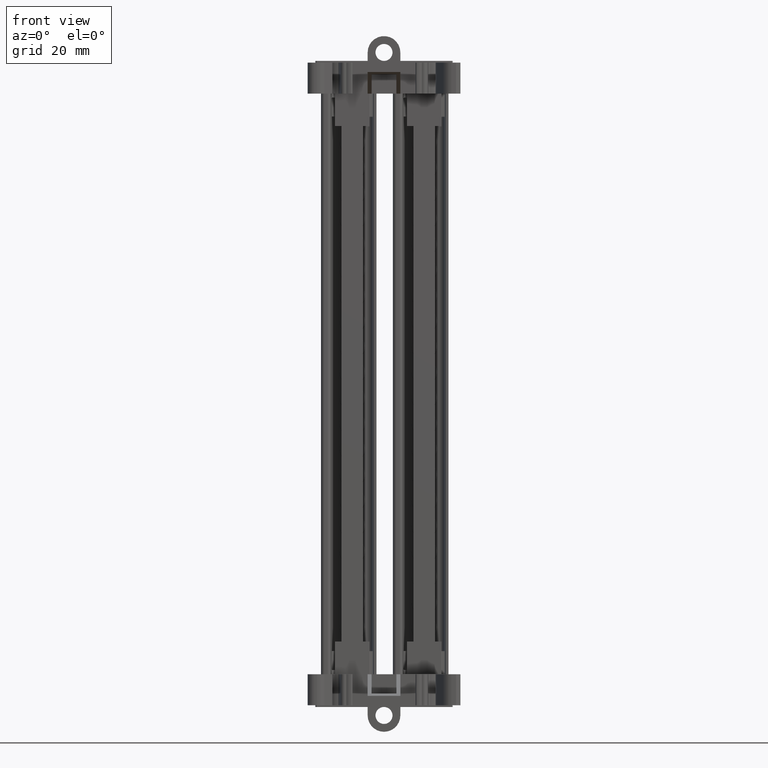
[diagram: clean part render]
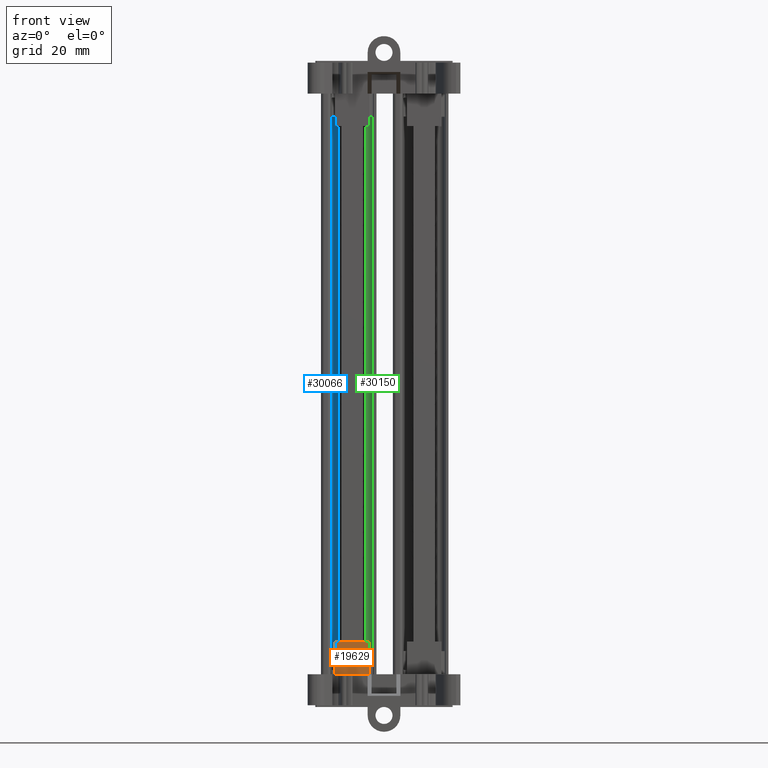
[diagram: same view with three faces highlighted in distinct colors, each labeled with its STEP entity id]
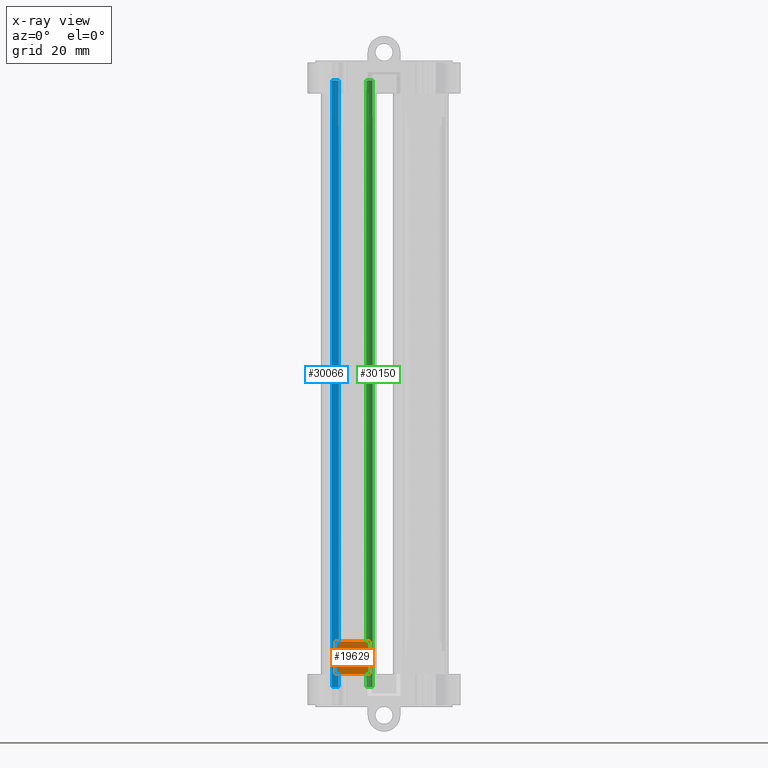
[diagram: x-ray of the same camera — body ghosted, the three highlighted faces saturated]
A machine part, front view with three faces highlighted in distinct colors.
The next image is the same camera in x-ray (body ghosted, the three faces saturated) — at least one of them is partly hidden behind the body in this view.
Their STEP definitions:

[orange] entity #19629 — the highlighted planar face has unit normal (-0, -1, 0).
#8579 = AXIS2_PLACEMENT_3D ( 'NONE', #85638, #85626, #85596 ) ;
#17766 = EDGE_CURVE ( 'NONE', #96726, #96664, #76262, .T. ) ;
#17980 = EDGE_CURVE ( 'NONE', #96737, #96695, #75651, .T. ) ;
#19629 = ADVANCED_FACE ( 'NONE', ( #85593 ), #85613, .T. ) ;
#20281 = ORIENTED_EDGE ( 'NONE', *, *, #17766, .F. ) ;
#20308 = ORIENTED_EDGE ( 'NONE', *, *, #50772, .T. ) ;
#20322 = ORIENTED_EDGE ( 'NONE', *, *, #17980, .F. ) ;
#20331 = ORIENTED_EDGE ( 'NONE', *, *, #50809, .T. ) ;
#40302 = EDGE_LOOP ( 'NONE', ( #20331, #20281, #20308, #20322 ) ) ;
#50772 = EDGE_CURVE ( 'NONE', #96726, #96695, #78217, .T. ) ;
#50809 = EDGE_CURVE ( 'NONE', #96737, #96664, #78203, .T. ) ;
#75651 = LINE ( 'NONE', #75708, #82608 ) ;
#75700 = DIRECTION ( 'NONE',  ( -3.469446952988439500E-018, 4.557183009288460000E-031, 1.000000000000000000 ) ) ;
#75708 = CARTESIAN_POINT ( 'NONE',  ( -61.77805005991852700, 11.42205551702955900, 47.32994441192239800 ) ) ;
#76262 = LINE ( 'NONE', #76277, #82396 ) ;
#76277 = CARTESIAN_POINT ( 'NONE',  ( -51.22521002070192300, 11.42205551702882000, 47.32994441192239800 ) ) ;
#76278 = DIRECTION ( 'NONE',  ( 3.469446950784518900E-018, 5.041723658430198100E-031, -1.000000000000000000 ) ) ;
#77488 = VECTOR ( 'NONE', #78192, 1000.000000000000000 ) ;
#77500 = VECTOR ( 'NONE', #78194, 1000.000000000000000 ) ;
#78190 = CARTESIAN_POINT ( 'NONE',  ( -64.51995388718779600, 11.42205551702947000, -32.09224290364846900 ) ) ;
#78192 = DIRECTION ( 'NONE',  ( -1.000000000000000000, 7.419278866477789400E-014, -0.0000000000000000000 ) ) ;
#78194 = DIRECTION ( 'NONE',  ( 1.000000000000000000, -7.419278866477789400E-014, 0.0000000000000000000 ) ) ;
#78197 = CARTESIAN_POINT ( 'NONE',  ( -64.51995388718779600, 11.42205551702954800, -22.12168353174845200 ) ) ;
#78203 = LINE ( 'NONE', #78190, #77500 ) ;
#78217 = LINE ( 'NONE', #78197, #77488 ) ;
#80236 = CARTESIAN_POINT ( 'NONE',  ( -51.22521002070161000, 11.42205551702874000, -32.09224290364845400 ) ) ;
#80240 = CARTESIAN_POINT ( 'NONE',  ( -61.77805005991852000, 11.42205551702948800, -22.12168353174845200 ) ) ;
#80284 = CARTESIAN_POINT ( 'NONE',  ( -61.77805005991852700, 11.42205551702949900, -32.09224290364845400 ) ) ;
#80311 = CARTESIAN_POINT ( 'NONE',  ( -51.22521002070194400, 11.42205551702871200, -22.12168353174845200 ) ) ;
#82396 = VECTOR ( 'NONE', #76278, 1000.000000000000000 ) ;
#82608 = VECTOR ( 'NONE', #75700, 1000.000000000000000 ) ;
#85593 = FACE_OUTER_BOUND ( 'NONE', #40302, .T. ) ;
#85596 = DIRECTION ( 'NONE',  ( 1.000000000000000000, -7.419278866477789400E-014, 0.0000000000000000000 ) ) ;
#85613 = PLANE ( 'NONE',  #8579 ) ;
#85626 = DIRECTION ( 'NONE',  ( -7.419278866477789400E-014, -1.000000000000000000, 7.965850201685501300E-015 ) ) ;
#85638 = CARTESIAN_POINT ( 'NONE',  ( -64.51995388718779600, 11.42205551702893900, -98.64254787400609800 ) ) ;
#96664 = VERTEX_POINT ( 'NONE', #80236 ) ;
#96695 = VERTEX_POINT ( 'NONE', #80240 ) ;
#96726 = VERTEX_POINT ( 'NONE', #80311 ) ;
#96737 = VERTEX_POINT ( 'NONE', #80284 ) ;

[blue] entity #30066 — the highlighted cylindrical surface (edge-blend (fillet) strip) has radius 1.9992 mm, axis along (-0, -0, -1).
#401 = DIRECTION ( 'NONE',  ( -4.320873588066585300E-013, -1.604972357196100300E-014, -1.000000000000000000 ) ) ;
#411 = DIRECTION ( 'NONE',  ( -1.000000000000000000, 0.0000000000000000000, 4.303744426681770100E-013 ) ) ;
#413 = CARTESIAN_POINT ( 'NONE',  ( -60.71356041065303100, 33.55203185268023000, -36.09779384098944600 ) ) ;
#5619 = AXIS2_PLACEMENT_3D ( 'NONE', #7595, #7529, #7499 ) ;
#7499 = DIRECTION ( 'NONE',  ( -1.000000000000000000, 0.0000000000000000000, 4.303744426681754900E-013 ) ) ;
#7509 = FACE_OUTER_BOUND ( 'NONE', #39140, .T. ) ;
#7529 = DIRECTION ( 'NONE',  ( -4.320873588066585300E-013, -1.604972357196100300E-014, -1.000000000000000000 ) ) ;
#7539 = CYLINDRICAL_SURFACE ( 'NONE', #5619, 1.999242424225208900 ) ;
#7595 = CARTESIAN_POINT ( 'NONE',  ( -60.71356041060720100, 33.55203185268192800, 69.96599374775621500 ) ) ;
#9836 = ORIENTED_EDGE ( 'NONE', *, *, #15791, .T. ) ;
#9847 = ORIENTED_EDGE ( 'NONE', *, *, #27041, .T. ) ;
#9861 = ORIENTED_EDGE ( 'NONE', *, *, #16641, .F. ) ;
#9892 = ORIENTED_EDGE ( 'NONE', *, *, #16579, .F. ) ;
#11596 = VERTEX_POINT ( 'NONE', #64719 ) ;
#11639 = VERTEX_POINT ( 'NONE', #64901 ) ;
#11783 = VERTEX_POINT ( 'NONE', #65007 ) ;
#13474 = VERTEX_POINT ( 'NONE', #63156 ) ;
#15791 = EDGE_CURVE ( 'NONE', #11783, #11639, #71377, .T. ) ;
#16579 = EDGE_CURVE ( 'NONE', #11596, #11639, #71618, .T. ) ;
#16641 = EDGE_CURVE ( 'NONE', #11783, #13474, #71888, .T. ) ;
#27041 = EDGE_CURVE ( 'NONE', #11596, #13474, #94686, .T. ) ;
#30066 = ADVANCED_FACE ( 'NONE', ( #7509 ), #7539, .F. ) ;
#39140 = EDGE_LOOP ( 'NONE', ( #9847, #9861, #9836, #9892 ) ) ;
#60177 = VECTOR ( 'NONE', #71666, 1000.000000000000000 ) ;
#60262 = VECTOR ( 'NONE', #71901, 1000.000000000000000 ) ;
#63156 = CARTESIAN_POINT ( 'NONE',  ( -60.71356041064853300, 35.55127427690543100, -36.09779384098946100 ) ) ;
#64719 = CARTESIAN_POINT ( 'NONE',  ( -62.71249834057319800, 33.58692344404187900, -36.09779384098924000 ) ) ;
#64901 = CARTESIAN_POINT ( 'NONE',  ( -62.71249834049326200, 33.58692344404266800, 148.9721892898925300 ) ) ;
#65007 = CARTESIAN_POINT ( 'NONE',  ( -60.71356041060632000, 35.55127427690840100, 148.9721892898921000 ) ) ;
#66384 = DIRECTION ( 'NONE',  ( -1.000000000000000000, -3.470761634420769900E-015, 4.303744426681754900E-013 ) ) ;
#66391 = DIRECTION ( 'NONE',  ( 4.320873588066585300E-013, 1.604972357196100300E-014, 1.000000000000000000 ) ) ;
#66419 = CARTESIAN_POINT ( 'NONE',  ( -60.71356041057305900, 33.55203185268320000, 148.9721892898916500 ) ) ;
#71377 = CIRCLE ( 'NONE', #71414, 1.999242424225208900 ) ;
#71414 = AXIS2_PLACEMENT_3D ( 'NONE', #66419, #66391, #66384 ) ;
#71618 = LINE ( 'NONE', #71661, #60177 ) ;
#71661 = CARTESIAN_POINT ( 'NONE',  ( -62.71249834052740400, 33.58692344404184400, 69.96599374775755100 ) ) ;
#71666 = DIRECTION ( 'NONE',  ( 4.316756871969292500E-013, -7.534927149393132500E-015, 1.000000000000000000 ) ) ;
#71888 = LINE ( 'NONE', #71906, #60262 ) ;
#71901 = DIRECTION ( 'NONE',  ( -3.231096739768754000E-028, -1.604972357196970300E-014, -1.000000000000000000 ) ) ;
#71906 = CARTESIAN_POINT ( 'NONE',  ( -60.71356041060632000, 35.55127427690712900, 69.96599374775621500 ) ) ;
#94686 = CIRCLE ( 'NONE', #94690, 1.999242424225201800 ) ;
#94690 = AXIS2_PLACEMENT_3D ( 'NONE', #413, #401, #411 ) ;

[green] entity #30150 — the highlighted cylindrical surface (edge-blend (fillet) strip) has radius 1.9992 mm, axis along (-0, -0, -1).
#5710 = ORIENTED_EDGE ( 'NONE', *, *, #17249, .F. ) ;
#5717 = ORIENTED_EDGE ( 'NONE', *, *, #17216, .F. ) ;
#5836 = ORIENTED_EDGE ( 'NONE', *, *, #17126, .F. ) ;
#5876 = AXIS2_PLACEMENT_3D ( 'NONE', #8434, #8432, #8411 ) ;
#5897 = ORIENTED_EDGE ( 'NONE', *, *, #24797, .T. ) ;
#5904 = ORIENTED_EDGE ( 'NONE', *, *, #17128, .T. ) ;
#5905 = ORIENTED_EDGE ( 'NONE', *, *, #15878, .T. ) ;
#5916 = ORIENTED_EDGE ( 'NONE', *, *, #16567, .F. ) ;
#5930 = ORIENTED_EDGE ( 'NONE', *, *, #17255, .T. ) ;
#8411 = DIRECTION ( 'NONE',  ( -1.000000000000000000, 0.0000000000000000000, 4.303744426681770100E-013 ) ) ;
#8428 = FACE_OUTER_BOUND ( 'NONE', #39114, .T. ) ;
#8430 = CYLINDRICAL_SURFACE ( 'NONE', #5876, 1.999242424225201800 ) ;
#8432 = DIRECTION ( 'NONE',  ( -4.320873588066585300E-013, -1.604972357196100300E-014, -1.000000000000000000 ) ) ;
#8434 = CARTESIAN_POINT ( 'NONE',  ( -52.29034639563752100, 33.55203185268182900, 69.96599374775259200 ) ) ;
#11854 = VERTEX_POINT ( 'NONE', #65048 ) ;
#11880 = VERTEX_POINT ( 'NONE', #65185 ) ;
#12008 = VERTEX_POINT ( 'NONE', #65572 ) ;
#13469 = VERTEX_POINT ( 'NONE', #63147 ) ;
#15878 = EDGE_CURVE ( 'NONE', #11880, #11854, #71625, .T. ) ;
#16567 = EDGE_CURVE ( 'NONE', #81362, #81353, #96808, .T. ) ;
#17126 = EDGE_CURVE ( 'NONE', #12008, #96578, #73660, .T. ) ;
#17128 = EDGE_CURVE ( 'NONE', #96501, #81353, #96858, .T. ) ;
#17216 = EDGE_CURVE ( 'NONE', #11880, #13469, #73943, .T. ) ;
#17249 = EDGE_CURVE ( 'NONE', #96501, #11854, #74012, .T. ) ;
#17255 = EDGE_CURVE ( 'NONE', #81362, #96578, #96843, .T. ) ;
#24797 = EDGE_CURVE ( 'NONE', #12008, #13469, #64779, .T. ) ;
#30150 = ADVANCED_FACE ( 'NONE', ( #8428 ), #8430, .F. ) ;
#39114 = EDGE_LOOP ( 'NONE', ( #5904, #5916, #5930, #5836, #5897, #5717, #5905, #5710 ) ) ;
#58858 = VECTOR ( 'NONE', #73586, 1000.000000000000000 ) ;
#58998 = VECTOR ( 'NONE', #73997, 1000.000000000000000 ) ;
#59019 = VECTOR ( 'NONE', #73946, 1000.000000000000000 ) ;
#63147 = CARTESIAN_POINT ( 'NONE',  ( -50.29140846576250800, 33.58692344402851400, -36.09779384098954600 ) ) ;
#64779 = CIRCLE ( 'NONE', #64813, 1.999242424225201800 ) ;
#64813 = AXIS2_PLACEMENT_3D ( 'NONE', #90600, #90585, #90576 ) ;
#65048 = CARTESIAN_POINT ( 'NONE',  ( -52.16252300402815900, 35.54718383972267800, 148.9721892898923000 ) ) ;
#65185 = CARTESIAN_POINT ( 'NONE',  ( -50.29140846568253000, 33.58692344403069500, 148.9721892898919900 ) ) ;
#65572 = CARTESIAN_POINT ( 'NONE',  ( -52.16252300390576800, 35.54718383970677600, -36.09779384098911200 ) ) ;
#69204 = CARTESIAN_POINT ( 'NONE',  ( -52.29034639560337900, 33.55203185268310100, 148.9721892898922700 ) ) ;
#69206 = DIRECTION ( 'NONE',  ( -1.000000000000000000, -3.470761634420782200E-015, 4.303744426681770100E-013 ) ) ;
#69251 = DIRECTION ( 'NONE',  ( 4.320873588066585300E-013, 1.604972357196100300E-014, 1.000000000000000000 ) ) ;
#71616 = CARTESIAN_POINT ( 'NONE',  ( -52.29034639558063400, 35.55127427690722900, 86.34212454035680700 ) ) ;
#71625 = CIRCLE ( 'NONE', #71692, 1.999242424225201800 ) ;
#71654 = CARTESIAN_POINT ( 'NONE',  ( -52.29034639558852900, 35.55127427690626300, 26.53227090854649700 ) ) ;
#71664 = CARTESIAN_POINT ( 'NONE',  ( -52.29034639559643000, 35.55127427690497700, -33.27758272326397600 ) ) ;
#71692 = AXIS2_PLACEMENT_3D ( 'NONE', #69204, #69251, #69206 ) ;
#71707 = CARTESIAN_POINT ( 'NONE',  ( -52.29034639556375900, 35.55127427690771900, 146.1519781721675600 ) ) ;
#73586 = DIRECTION ( 'NONE',  ( 4.320873588066585300E-013, 1.604972357196100300E-014, 1.000000000000000000 ) ) ;
#73601 = CARTESIAN_POINT ( 'NONE',  ( -52.16252300385993800, 35.54718383970846700, 69.96599374775250600 ) ) ;
#73605 = CARTESIAN_POINT ( 'NONE',  ( -52.20507264865708700, 35.54990986757516000, 146.1507065707119800 ) ) ;
#73607 = CARTESIAN_POINT ( 'NONE',  ( -52.29034639556375900, 35.55127427690771900, 146.1519781721675600 ) ) ;
#73617 = CARTESIAN_POINT ( 'NONE',  ( -52.16252300402894800, 35.54718383972267000, 146.1500707699843800 ) ) ;
#73635 = CARTESIAN_POINT ( 'NONE',  ( -52.24770951616260100, 35.55127427690757700, 146.1513423714395400 ) ) ;
#73660 = LINE ( 'NONE', #73601, #58858 ) ;
#73897 = CARTESIAN_POINT ( 'NONE',  ( -50.29140846571667800, 33.58692344403009100, 69.96599374775175300 ) ) ;
#73943 = LINE ( 'NONE', #73897, #59019 ) ;
#73946 = DIRECTION ( 'NONE',  ( -4.322358144719055700E-013, -7.544704204473562900E-015, -1.000000000000000000 ) ) ;
#73971 = CARTESIAN_POINT ( 'NONE',  ( -52.29034639559643000, 35.55127427690497700, -33.27758272326397600 ) ) ;
#73980 = CARTESIAN_POINT ( 'NONE',  ( -52.24770951613746900, 35.55127427690354800, -33.27694692253388800 ) ) ;
#73990 = CARTESIAN_POINT ( 'NONE',  ( -52.16252300406186700, 35.54718383972140600, 69.96599374775250600 ) ) ;
#73997 = DIRECTION ( 'NONE',  ( 4.320873588066585300E-013, 1.604972357196100300E-014, 1.000000000000000000 ) ) ;
#74012 = LINE ( 'NONE', #73990, #58998 ) ;
#74117 = CARTESIAN_POINT ( 'NONE',  ( -52.16252300390615200, 35.54718383970692500, -33.27567532107404700 ) ) ;
#74122 = CARTESIAN_POINT ( 'NONE',  ( -52.20507264858314800, 35.54990986756685300, -33.27631112180397800 ) ) ;
#78693 = CARTESIAN_POINT ( 'NONE',  ( -52.29034639556375900, 35.55127427690771900, 146.1519781721675600 ) ) ;
#78726 = CARTESIAN_POINT ( 'NONE',  ( -52.29034639559643000, 35.55127427690497700, -33.27758272326397600 ) ) ;
#80028 = CARTESIAN_POINT ( 'NONE',  ( -52.16252300402894800, 35.54718383972267000, 146.1500707699843800 ) ) ;
#80083 = CARTESIAN_POINT ( 'NONE',  ( -52.16252300390615200, 35.54718383970692500, -33.27567532107404700 ) ) ;
#81353 = VERTEX_POINT ( 'NONE', #78693 ) ;
#81362 = VERTEX_POINT ( 'NONE', #78726 ) ;
#90576 = DIRECTION ( 'NONE',  ( -1.000000000000000000, 0.0000000000000000000, 4.303744426681770100E-013 ) ) ;
#90585 = DIRECTION ( 'NONE',  ( -4.320873588066585300E-013, -1.604972357196100300E-014, -1.000000000000000000 ) ) ;
#90600 = CARTESIAN_POINT ( 'NONE',  ( -52.29034639568335100, 33.55203185268013000, -36.09779384098862900 ) ) ;
#96501 = VERTEX_POINT ( 'NONE', #80028 ) ;
#96578 = VERTEX_POINT ( 'NONE', #80083 ) ;
#96808 = B_SPLINE_CURVE_WITH_KNOTS ( 'NONE', 3,
 ( #71664, #71654, #71616, #71707 ),
 .UNSPECIFIED., .F., .F.,
 ( 4, 4 ),
 ( 0.0000000000000000000, 1.000000000000000000 ),
 .UNSPECIFIED. ) ;
#96843 = B_SPLINE_CURVE_WITH_KNOTS ( 'NONE', 3,
 ( #73971, #73980, #74122, #74117 ),
 .UNSPECIFIED., .F., .F.,
 ( 4, 4 ),
 ( 0.0000000000000000000, 1.000000000000000000 ),
 .UNSPECIFIED. ) ;
#96858 = B_SPLINE_CURVE_WITH_KNOTS ( 'NONE', 3,
 ( #73617, #73605, #73635, #73607 ),
 .UNSPECIFIED., .F., .F.,
 ( 4, 4 ),
 ( 0.0000000000000000000, 1.000000000000000000 ),
 .UNSPECIFIED. ) ;